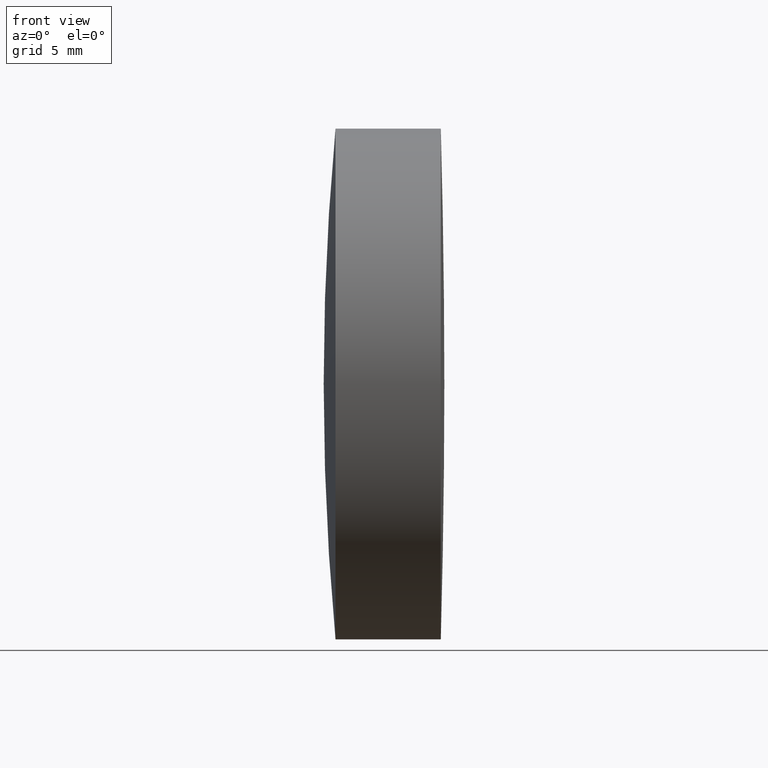
[diagram: clean part render]
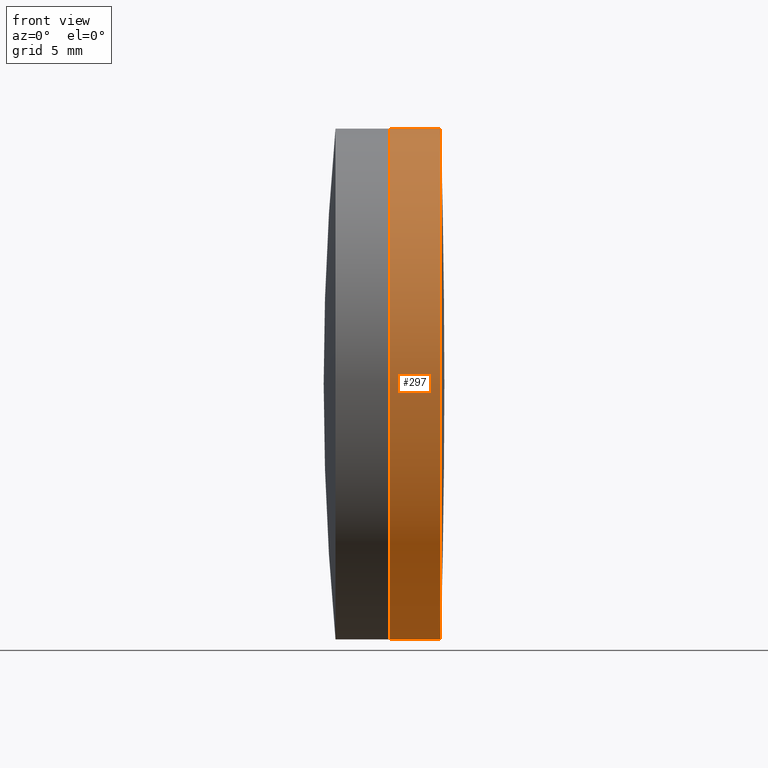
[diagram: same view with one face highlighted and labeled with its STEP entity id]
A machine part, front view. The second image highlights one B-rep face of the part: STEP entity #297.
In plain terms, the highlighted cylindrical surface (partial cylindrical patch) has radius 12.7 mm, axis along (-1, -0, -0).
Its self-contained STEP definition (entity closure, byte-faithful):
#1 = DIRECTION ( 'NONE',  ( 0.0000000000000000000, 0.0000000000000000000, 1.000000000000000000 ) ) ;
#6 = FACE_OUTER_BOUND ( 'NONE', #336, .T. ) ;
#8 = EDGE_CURVE ( 'NONE', #158, #92, #53, .T. ) ;
#15 = DIRECTION ( 'NONE',  ( 0.0000000000000000000, 0.0000000000000000000, 1.000000000000000000 ) ) ;
#25 = VECTOR ( 'NONE', #318, 1000.000000000000000 ) ;
#31 = EDGE_CURVE ( 'NONE', #199, #324, #153, .T. ) ;
#41 = CARTESIAN_POINT ( 'NONE',  ( 294.2237933026709700, 0.0000000000000000000, 0.0000000000000000000 ) ) ;
#47 = CARTESIAN_POINT ( 'NONE',  ( 291.6738128087178000, 0.0000000000000000000, 0.0000000000000000000 ) ) ;
#52 = EDGE_CURVE ( 'NONE', #158, #199, #299, .T. ) ;
#53 = CIRCLE ( 'NONE', #331, 12.69999999999995500 ) ;
#73 = ORIENTED_EDGE ( 'NONE', *, *, #52, .F. ) ;
#75 = CARTESIAN_POINT ( 'NONE',  ( 291.6738128087178000, 0.0000000000000000000, 12.69999999999998700 ) ) ;
#92 = VERTEX_POINT ( 'NONE', #108 ) ;
#93 = LINE ( 'NONE', #344, #25 ) ;
#108 = CARTESIAN_POINT ( 'NONE',  ( 294.2237933026709700, 0.0000000000000000000, 12.69999999999995500 ) ) ;
#138 = CARTESIAN_POINT ( 'NONE',  ( -0.5519199926577972300, 0.0000000000000000000, 0.0000000000000000000 ) ) ;
#139 = VECTOR ( 'NONE', #190, 1000.000000000000000 ) ;
#153 = CIRCLE ( 'NONE', #301, 12.69999999999998900 ) ;
#158 = VERTEX_POINT ( 'NONE', #196 ) ;
#176 = ORIENTED_EDGE ( 'NONE', *, *, #202, .T. ) ;
#179 = AXIS2_PLACEMENT_3D ( 'NONE', #138, #234, #15 ) ;
#180 = ORIENTED_EDGE ( 'NONE', *, *, #31, .F. ) ;
#190 = DIRECTION ( 'NONE',  ( -1.000000000000000000, -0.0000000000000000000, -0.0000000000000000000 ) ) ;
#192 = DIRECTION ( 'NONE',  ( -1.000000000000000000, -0.0000000000000000000, -0.0000000000000000000 ) ) ;
#196 = CARTESIAN_POINT ( 'NONE',  ( 294.2237933026709700, 1.555301434917134100E-015, -12.69999999999995500 ) ) ;
#199 = VERTEX_POINT ( 'NONE', #293 ) ;
#202 = EDGE_CURVE ( 'NONE', #92, #324, #93, .T. ) ;
#234 = DIRECTION ( 'NONE',  ( -1.000000000000000000, -0.0000000000000000000, -0.0000000000000000000 ) ) ;
#242 = CYLINDRICAL_SURFACE ( 'NONE', #179, 12.69999999999997100 ) ;
#245 = CARTESIAN_POINT ( 'NONE',  ( -0.5519199926577972300, 1.555301434917135100E-015, -12.69999999999997100 ) ) ;
#289 = DIRECTION ( 'NONE',  ( -1.000000000000000000, -0.0000000000000000000, -0.0000000000000000000 ) ) ;
#293 = CARTESIAN_POINT ( 'NONE',  ( 291.6738128087178000, 1.555301434917137100E-015, -12.69999999999998900 ) ) ;
#297 = ADVANCED_FACE ( 'NONE', ( #6 ), #242, .T. ) ;
#299 = LINE ( 'NONE', #245, #139 ) ;
#301 = AXIS2_PLACEMENT_3D ( 'NONE', #47, #192, #1 ) ;
#306 = DIRECTION ( 'NONE',  ( 0.0000000000000000000, 0.0000000000000000000, 1.000000000000000000 ) ) ;
#318 = DIRECTION ( 'NONE',  ( -1.000000000000000000, -0.0000000000000000000, -0.0000000000000000000 ) ) ;
#324 = VERTEX_POINT ( 'NONE', #75 ) ;
#328 = ORIENTED_EDGE ( 'NONE', *, *, #8, .T. ) ;
#331 = AXIS2_PLACEMENT_3D ( 'NONE', #41, #289, #306 ) ;
#336 = EDGE_LOOP ( 'NONE', ( #73, #328, #176, #180 ) ) ;
#344 = CARTESIAN_POINT ( 'NONE',  ( -0.5519199926577972300, 0.0000000000000000000, 12.69999999999997100 ) ) ;